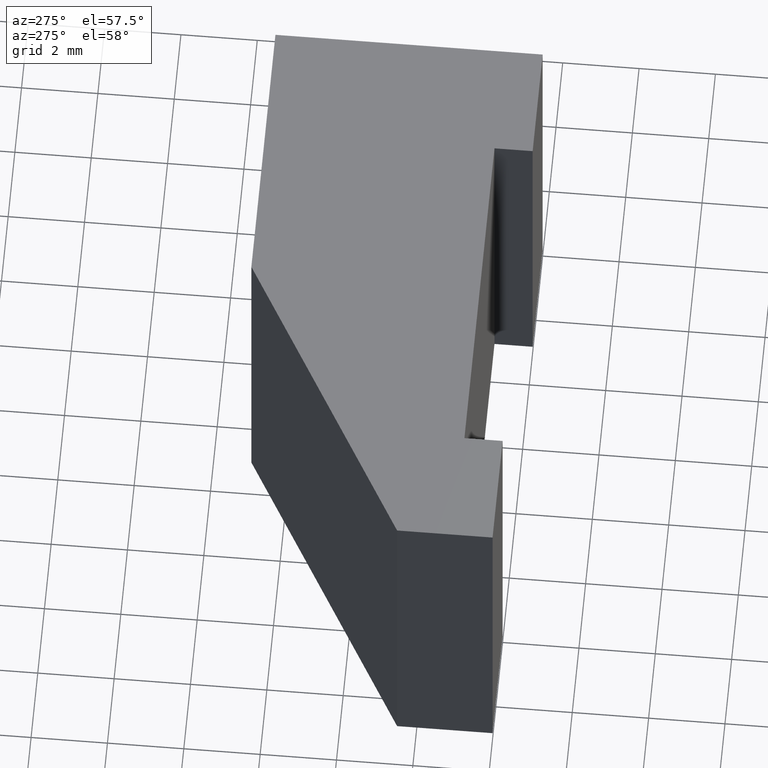
[diagram: clean part render]
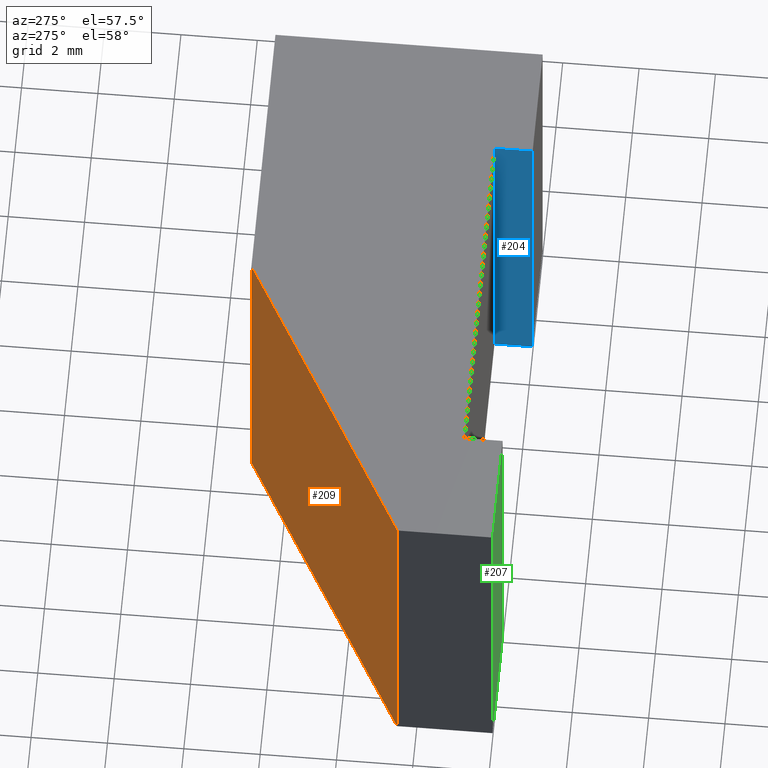
[diagram: same view with three faces highlighted in distinct colors, each labeled with its STEP entity id]
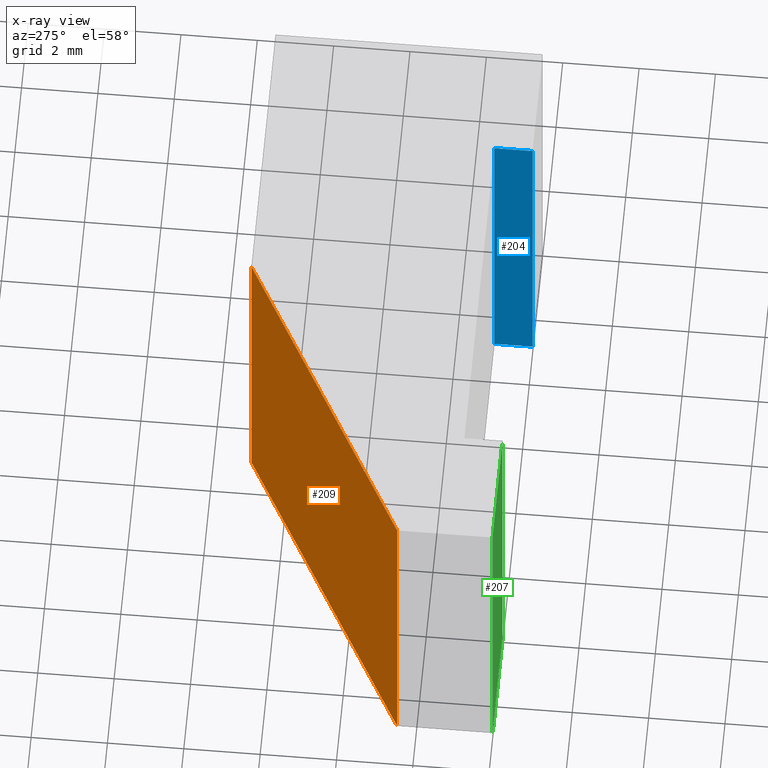
[diagram: x-ray of the same camera — body ghosted, the three highlighted faces saturated]
A machine part, auxiliary view with three faces highlighted in distinct colors.
The next image is the same camera in x-ray (body ghosted, the three faces saturated) — at least one of them is partly hidden behind the body in this view.
Their STEP definitions:

[orange] entity #209 — the highlighted planar face has unit normal (-0.5, 0.866, 0).
#20=FACE_OUTER_BOUND('',#31,.T.);
#31=EDGE_LOOP('',(#159,#160,#161,#162));
#53=LINE('',#337,#80);
#55=LINE('',#341,#82);
#56=LINE('',#343,#83);
#57=LINE('',#344,#84);
#80=VECTOR('',#279,10.);
#82=VECTOR('',#283,10.);
#83=VECTOR('',#284,10.);
#84=VECTOR('',#285,10.);
#102=VERTEX_POINT('',#334);
#103=VERTEX_POINT('',#336);
#104=VERTEX_POINT('',#340);
#105=VERTEX_POINT('',#342);
#125=EDGE_CURVE('',#103,#102,#53,.T.);
#127=EDGE_CURVE('',#102,#104,#55,.T.);
#128=EDGE_CURVE('',#105,#104,#56,.T.);
#129=EDGE_CURVE('',#105,#103,#57,.T.);
#159=ORIENTED_EDGE('',*,*,#127,.T.);
#160=ORIENTED_EDGE('',*,*,#128,.F.);
#161=ORIENTED_EDGE('',*,*,#129,.T.);
#162=ORIENTED_EDGE('',*,*,#125,.T.);
#195=PLANE('',#243);
#209=ADVANCED_FACE('',(#20),#195,.T.);
#243=AXIS2_PLACEMENT_3D('',#339,#281,#282);
#279=DIRECTION('',(0.,0.,1.));
#281=DIRECTION('center_axis',(-0.5,0.866025403784439,0.));
#282=DIRECTION('ref_axis',(0.,0.,1.));
#283=DIRECTION('',(0.866025403784439,0.5,0.));
#284=DIRECTION('',(0.,0.,1.));
#285=DIRECTION('',(-0.866025403784439,-0.5,0.));
#334=CARTESIAN_POINT('',(-15.,2.5,9.5));
#336=CARTESIAN_POINT('',(-15.,2.5,0.));
#337=CARTESIAN_POINT('',(-15.,2.5,0.));
#339=CARTESIAN_POINT('Origin',(-15.,2.5,0.));
#340=CARTESIAN_POINT('',(-7.20577136594005,7.,9.5));
#341=CARTESIAN_POINT('',(-7.20577136594005,7.,9.5));
#342=CARTESIAN_POINT('',(-7.20577136594005,7.,0.));
#343=CARTESIAN_POINT('',(-7.20577136594005,7.,0.));
#344=CARTESIAN_POINT('',(-7.20577136594005,7.,0.));

[blue] entity #204 — the highlighted planar face has unit normal (-1, 0, 0).
#15=FACE_OUTER_BOUND('',#26,.T.);
#26=EDGE_LOOP('',(#139,#140,#141,#142));
#37=LINE('',#305,#64);
#40=LINE('',#311,#67);
#41=LINE('',#313,#68);
#42=LINE('',#314,#69);
#64=VECTOR('',#253,10.);
#67=VECTOR('',#258,10.);
#68=VECTOR('',#259,10.);
#69=VECTOR('',#260,10.);
#91=VERTEX_POINT('',#302);
#92=VERTEX_POINT('',#304);
#94=VERTEX_POINT('',#310);
#95=VERTEX_POINT('',#312);
#109=EDGE_CURVE('',#92,#91,#37,.T.);
#112=EDGE_CURVE('',#91,#94,#40,.T.);
#113=EDGE_CURVE('',#95,#94,#41,.T.);
#114=EDGE_CURVE('',#95,#92,#42,.T.);
#139=ORIENTED_EDGE('',*,*,#112,.T.);
#140=ORIENTED_EDGE('',*,*,#113,.F.);
#141=ORIENTED_EDGE('',*,*,#114,.T.);
#142=ORIENTED_EDGE('',*,*,#109,.T.);
#190=PLANE('',#238);
#204=ADVANCED_FACE('',(#15),#190,.T.);
#238=AXIS2_PLACEMENT_3D('',#309,#256,#257);
#253=DIRECTION('',(0.,0.,1.));
#256=DIRECTION('center_axis',(-1.,1.11022302462516E-15,0.));
#257=DIRECTION('ref_axis',(0.,0.,1.));
#258=DIRECTION('',(1.11022302462516E-15,1.,0.));
#259=DIRECTION('',(0.,0.,1.));
#260=DIRECTION('',(-1.11022302462516E-15,-1.,0.));
#302=CARTESIAN_POINT('',(-3.,5.55111512312578E-16,9.5));
#304=CARTESIAN_POINT('',(-3.,5.55111512312578E-16,0.));
#305=CARTESIAN_POINT('',(-3.,5.55111512312578E-16,0.));
#309=CARTESIAN_POINT('Origin',(-3.,5.55111512312578E-16,0.));
#310=CARTESIAN_POINT('',(-3.,1.,9.5));
#311=CARTESIAN_POINT('',(-3.,1.,9.5));
#312=CARTESIAN_POINT('',(-3.,1.,0.));
#313=CARTESIAN_POINT('',(-3.,1.,0.));
#314=CARTESIAN_POINT('',(-3.,1.,0.));

[green] entity #207 — the highlighted planar face has unit normal (-0, -1, 0).
#18=FACE_OUTER_BOUND('',#29,.T.);
#29=EDGE_LOOP('',(#151,#152,#153,#154));
#47=LINE('',#325,#74);
#49=LINE('',#329,#76);
#50=LINE('',#331,#77);
#51=LINE('',#332,#78);
#74=VECTOR('',#269,10.);
#76=VECTOR('',#273,10.);
#77=VECTOR('',#274,10.);
#78=VECTOR('',#275,10.);
#98=VERTEX_POINT('',#322);
#99=VERTEX_POINT('',#324);
#100=VERTEX_POINT('',#328);
#101=VERTEX_POINT('',#330);
#119=EDGE_CURVE('',#99,#98,#47,.T.);
#121=EDGE_CURVE('',#98,#100,#49,.T.);
#122=EDGE_CURVE('',#101,#100,#50,.T.);
#123=EDGE_CURVE('',#101,#99,#51,.T.);
#151=ORIENTED_EDGE('',*,*,#121,.T.);
#152=ORIENTED_EDGE('',*,*,#122,.F.);
#153=ORIENTED_EDGE('',*,*,#123,.T.);
#154=ORIENTED_EDGE('',*,*,#119,.T.);
#193=PLANE('',#241);
#207=ADVANCED_FACE('',(#18),#193,.T.);
#241=AXIS2_PLACEMENT_3D('',#327,#271,#272);
#269=DIRECTION('',(0.,0.,1.));
#271=DIRECTION('center_axis',(-1.8503717077086E-16,-1.,0.));
#272=DIRECTION('ref_axis',(0.,0.,-1.));
#273=DIRECTION('',(-1.,1.8503717077086E-16,0.));
#274=DIRECTION('',(0.,0.,1.));
#275=DIRECTION('',(1.,-1.8503717077086E-16,0.));
#322=CARTESIAN_POINT('',(-12.,2.22044604925031E-15,9.5));
#324=CARTESIAN_POINT('',(-12.,2.22044604925031E-15,0.));
#325=CARTESIAN_POINT('',(-12.,2.22044604925031E-15,0.));
#327=CARTESIAN_POINT('Origin',(-12.,2.22044604925031E-15,0.));
#328=CARTESIAN_POINT('',(-15.,2.77555756156289E-15,9.5));
#329=CARTESIAN_POINT('',(-15.,2.77555756156289E-15,9.5));
#330=CARTESIAN_POINT('',(-15.,2.77555756156289E-15,0.));
#331=CARTESIAN_POINT('',(-15.,2.77555756156289E-15,0.));
#332=CARTESIAN_POINT('',(-15.,2.77555756156289E-15,0.));